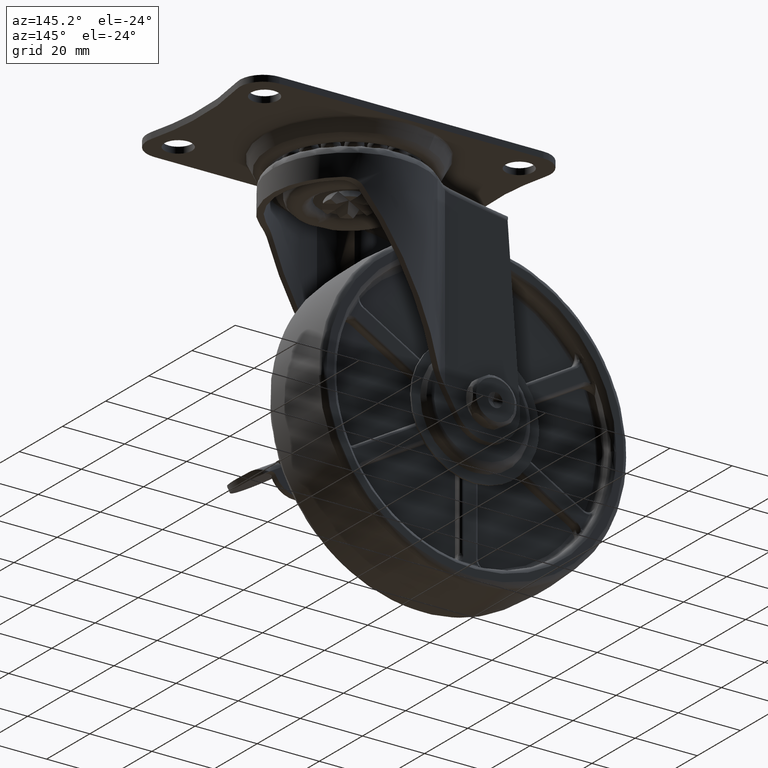
[diagram: clean part render]
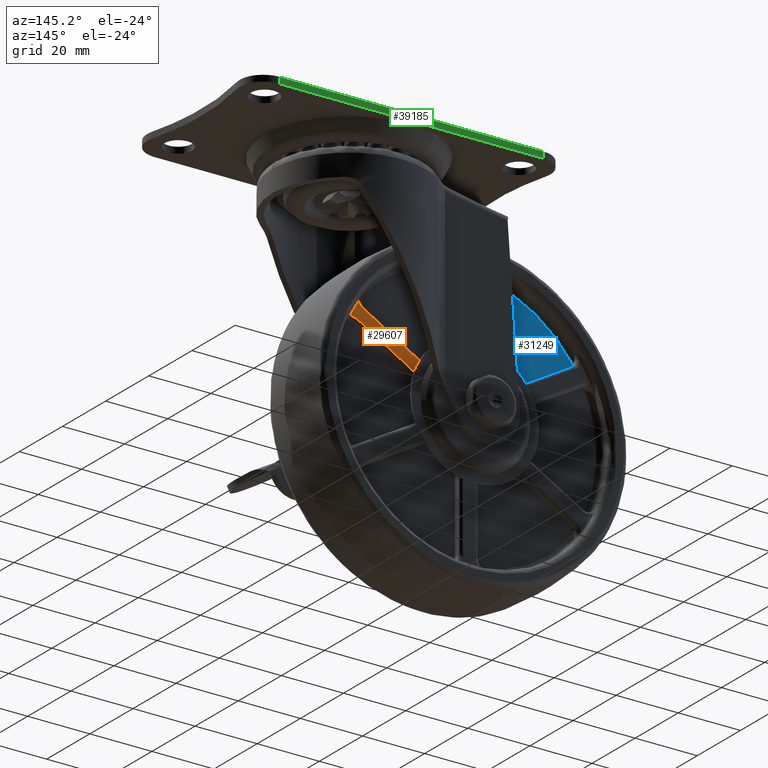
[diagram: same view with three faces highlighted in distinct colors, each labeled with its STEP entity id]
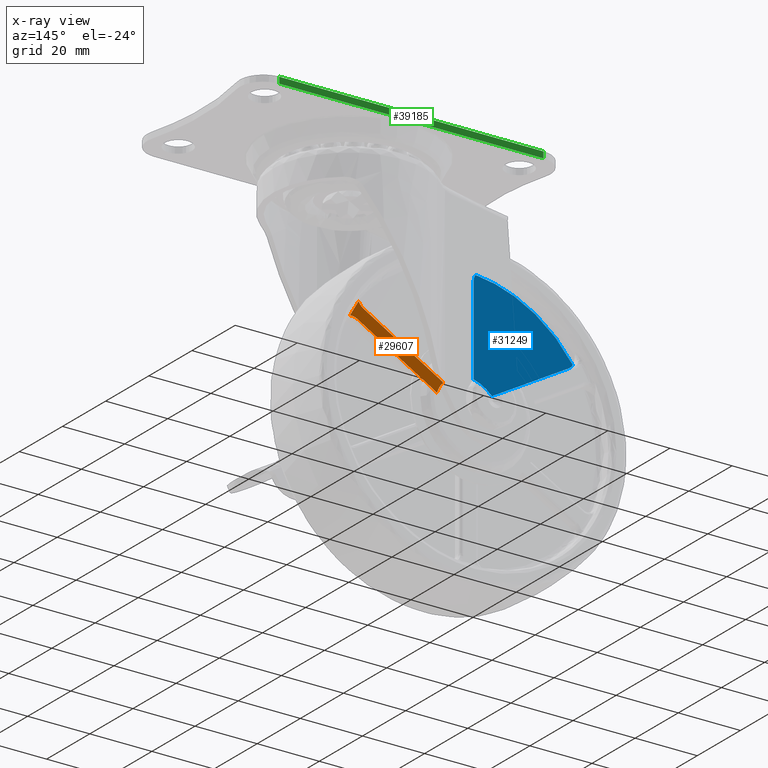
[diagram: x-ray of the same camera — body ghosted, the three highlighted faces saturated]
A machine part, auxiliary view with three faces highlighted in distinct colors.
The next image is the same camera in x-ray (body ghosted, the three faces saturated) — at least one of them is partly hidden behind the body in this view.
Their STEP definitions:

[orange] entity #29607 — the highlighted face is a freeform B-spline surface patch.
#13175=CARTESIAN_POINT('',(3.779601679800585,10.0,-46.150050238316702));
#13176=VERTEX_POINT('',#13175);
#13263=CARTESIAN_POINT('',(6.544463212500560,10.0,-50.938930888845903));
#13264=VERTEX_POINT('',#13263);
#13274=CARTESIAN_POINT('',(3.779601679800585,10.0,-46.150050238316702));
#13275=CARTESIAN_POINT('',(4.802702709859332,9.999999999999993,-47.684815889935983));
#13276=CARTESIAN_POINT('',(5.726855381316554,9.999999999999986,-49.285524670181218));
#13277=CARTESIAN_POINT('',(6.544463212500560,10.0,-50.938930888845903));
#13278=B_SPLINE_CURVE_WITH_KNOTS('',3,(#13274,#13275,#13276,#13277),.UNSPECIFIED.,.F.,.U.,(4,4),(8.749907E-010,5.533555411162674),.UNSPECIFIED.);
#13279=EDGE_CURVE('',#13176,#13264,#13278,.T.);
#15553=CARTESIAN_POINT('',(-21.420945100704550,10.0,-66.236217239079608));
#15554=VERTEX_POINT('',#15553);
#15641=CARTESIAN_POINT('',(-23.450941065069351,10.0,-62.720161089640001));
#15642=VERTEX_POINT('',#15641);
#15653=CARTESIAN_POINT('',(-21.420945100704550,10.0,-66.236217239079608));
#15654=CARTESIAN_POINT('',(-21.876549809029932,10.000000000000020,-64.953839010963307));
#15655=CARTESIAN_POINT('',(-22.568041593440551,10.000000000000020,-63.755838765397783));
#15656=CARTESIAN_POINT('',(-23.450941065069351,10.0,-62.720161089640001));
#15657=B_SPLINE_CURVE_WITH_KNOTS('',3,(#15653,#15654,#15655,#15656),.UNSPECIFIED.,.F.,.U.,(4,4),(0.000000013436559,4.082461791355663),.UNSPECIFIED.);
#15658=EDGE_CURVE('',#15554,#15642,#15657,.T.);
#24973=CARTESIAN_POINT('',(2.124777591935125,10.0,-47.988648783682400));
#24974=VERTEX_POINT('',#24973);
#24975=CARTESIAN_POINT('',(2.124777591935125,10.0,-47.988648783682400));
#24976=CARTESIAN_POINT('',(2.510645462023545,10.000000000000011,-47.766245185645033));
#24977=CARTESIAN_POINT('',(3.165441904364022,9.999999999999981,-47.224307327010152));
#24978=CARTESIAN_POINT('',(3.620072484260611,10.0,-46.509191226654323));
#24979=CARTESIAN_POINT('',(3.779601679800585,10.0,-46.150050238316702));
#24980=B_SPLINE_CURVE_WITH_KNOTS('',3,(#24975,#24976,#24977,#24978,#24979),.UNSPECIFIED.,.F.,.U.,(4,1,4),(0.000000073772816,1.336005434185263,2.514894473802157),.UNSPECIFIED.);
#24981=EDGE_CURVE('',#24974,#13176,#24980,.T.);
#25010=CARTESIAN_POINT('',(-23.012508685252499,10.0,-62.501667621309807));
#25011=VERTEX_POINT('',#25010);
#25030=CARTESIAN_POINT('',(-23.012508685252499,10.0,-62.501667621309807));
#25031=CARTESIAN_POINT('',(2.124777591935125,10.0,-47.988648783682400));
#25032=QUASI_UNIFORM_CURVE('',1,(#25030,#25031),.UNSPECIFIED.,.F.,.U.);
#25033=EDGE_CURVE('',#25011,#24974,#25032,.T.);
#25055=CARTESIAN_POINT('',(-23.450941065069351,10.0,-62.720161089640001));
#25056=CARTESIAN_POINT('',(-23.300537261227369,10.0,-62.656388236771342));
#25057=CARTESIAN_POINT('',(-23.153978204622501,10.0,-62.583350694097057));
#25058=CARTESIAN_POINT('',(-23.012508685252499,10.0,-62.501667621309807));
#25059=B_SPLINE_CURVE_WITH_KNOTS('',3,(#25055,#25056,#25057,#25058),.UNSPECIFIED.,.F.,.U.,(4,4),(4.494666E-009,0.490185306878135),.UNSPECIFIED.);
#25060=EDGE_CURVE('',#15642,#25011,#25059,.T.);
#25090=CARTESIAN_POINT('',(-21.012508016661151,10.0,-65.965770394481709));
#25091=VERTEX_POINT('',#25090);
#25101=CARTESIAN_POINT('',(4.124777983338816,10.0,-51.452751394481602));
#25102=VERTEX_POINT('',#25101);
#25103=CARTESIAN_POINT('',(4.124777983338816,10.0,-51.452751394481602));
#25104=CARTESIAN_POINT('',(-21.012508016661151,10.0,-65.965770394481709));
#25105=QUASI_UNIFORM_CURVE('',1,(#25103,#25104),.UNSPECIFIED.,.F.,.U.);
#25106=EDGE_CURVE('',#25102,#25091,#25105,.T.);
#25145=CARTESIAN_POINT('',(6.544463212500560,10.0,-50.938930888845903));
#25146=CARTESIAN_POINT('',(6.153677702511574,10.0,-50.897534801823582));
#25147=CARTESIAN_POINT('',(5.307032232209445,9.999999999999982,-50.933607687736277));
#25148=CARTESIAN_POINT('',(4.510337697240670,10.000000000000030,-51.229840655803862));
#25149=CARTESIAN_POINT('',(4.124777983338816,10.0,-51.452751394481602));
#25150=B_SPLINE_CURVE_WITH_KNOTS('',3,(#25145,#25146,#25147,#25148,#25149),.UNSPECIFIED.,.F.,.U.,(4,1,4),(0.000000073772609,1.178889187867252,2.514894632674950),.UNSPECIFIED.);
#25151=EDGE_CURVE('',#13264,#25102,#25150,.T.);
#25195=CARTESIAN_POINT('',(-21.012508016661151,10.0,-65.965770394481709));
#25196=CARTESIAN_POINT('',(-21.153988688498728,9.999999999999991,-66.047449648087124));
#25197=CARTESIAN_POINT('',(-21.290520974012122,10.000000000000011,-66.137854154198990));
#25198=CARTESIAN_POINT('',(-21.420945100704550,10.0,-66.236217239079608));
#25199=B_SPLINE_CURVE_WITH_KNOTS('',3,(#25195,#25196,#25197,#25198),.UNSPECIFIED.,.F.,.U.,(4,4),(4.494778E-009,0.490185306878158),.UNSPECIFIED.);
#25200=EDGE_CURVE('',#25091,#15554,#25199,.T.);
#29592=CARTESIAN_POINT('',(-24.949211450597058,10.0,-67.239517587538202));
#29593=CARTESIAN_POINT('',(8.042734402567703,10.0,-67.239517587538202));
#29594=CARTESIAN_POINT('',(-24.949211450597058,10.0,-45.146747375677521));
#29595=CARTESIAN_POINT('',(8.042734402567703,10.0,-45.146747375677521));
#29596=B_SPLINE_SURFACE_WITH_KNOTS('',1,1,((#29592,#29594),(#29593,#29595)),.UNSPECIFIED.,.F.,.F.,.U.,(2,2),(2,2),(0.0,32.991945853164758),(0.0,22.092770211860682),.UNSPECIFIED.);
#29597=ORIENTED_EDGE('',*,*,#24981,.T.);
#29598=ORIENTED_EDGE('',*,*,#13279,.T.);
#29599=ORIENTED_EDGE('',*,*,#25151,.T.);
#29600=ORIENTED_EDGE('',*,*,#25106,.T.);
#29601=ORIENTED_EDGE('',*,*,#25200,.T.);
#29602=ORIENTED_EDGE('',*,*,#15658,.T.);
#29603=ORIENTED_EDGE('',*,*,#25060,.T.);
#29604=ORIENTED_EDGE('',*,*,#25033,.T.);
#29605=EDGE_LOOP('',(#29597,#29598,#29599,#29600,#29601,#29602,#29603,#29604));
#29606=FACE_OUTER_BOUND('',#29605,.T.);
#29607=ADVANCED_FACE('',(#29606),#29596,.F.);

[blue] entity #31249 — the highlighted face is a freeform B-spline surface patch.
#29690=CARTESIAN_POINT('',(-35.592036036793097,7.500000000000000,-27.652068797751301));
#29691=VERTEX_POINT('',#29690);
#29726=CARTESIAN_POINT('',(-35.000000528984963,7.500000000000000,-29.441400133637948));
#29727=VERTEX_POINT('',#29726);
#29733=CARTESIAN_POINT('',(-35.592036036793097,7.500000000000000,-27.652068797751301));
#29734=CARTESIAN_POINT('',(-35.353340790336553,7.500000000000004,-27.972432271427980));
#29735=CARTESIAN_POINT('',(-35.076936403752917,7.500000000000001,-28.562678514731520));
#29736=CARTESIAN_POINT('',(-34.999958054246036,7.500000000000007,-29.201748100233750));
#29737=CARTESIAN_POINT('',(-35.000000528984963,7.500000000000000,-29.441400133637948));
#29738=B_SPLINE_CURVE_WITH_KNOTS('',3,(#29733,#29734,#29735,#29736,#29737),.UNSPECIFIED.,.F.,.U.,(4,1,4),(0.000000075556192,1.198250149626194,1.917221489820000),.UNSPECIFIED.);
#29739=EDGE_CURVE('',#29691,#29727,#29738,.T.);
#29789=CARTESIAN_POINT('',(-35.000000666473753,7.500000000000000,-58.027162575756300));
#29790=VERTEX_POINT('',#29789);
#29798=CARTESIAN_POINT('',(-35.000000666473753,7.500000000000000,-58.027162575756300));
#29799=CARTESIAN_POINT('',(-35.000000528984963,7.500000000000000,-29.441400133637948));
#29800=QUASI_UNIFORM_CURVE('',1,(#29798,#29799),.UNSPECIFIED.,.F.,.U.);
#29801=EDGE_CURVE('',#29790,#29727,#29800,.T.);
#29898=CARTESIAN_POINT('',(-65.624777458519105,7.500000000000000,-47.122623456925602));
#29899=VERTEX_POINT('',#29898);
#29906=CARTESIAN_POINT('',(-66.878366200466402,7.500000000000000,-45.715239939703608));
#29907=VERTEX_POINT('',#29906);
#29942=CARTESIAN_POINT('',(-65.624777458519105,7.500000000000000,-47.122623456925602));
#29943=CARTESIAN_POINT('',(-65.971016648469586,7.499999999999969,-46.923310228360002));
#29944=CARTESIAN_POINT('',(-66.458987974959328,7.500000000000059,-46.491251577682377));
#29945=CARTESIAN_POINT('',(-66.783288242332532,7.499999999999970,-45.935223638200043));
#29946=CARTESIAN_POINT('',(-66.878366200466402,7.500000000000000,-45.715239939703608));
#29947=B_SPLINE_CURVE_WITH_KNOTS('',3,(#29942,#29943,#29944,#29945,#29946),.UNSPECIFIED.,.F.,.U.,(4,1,4),(0.000000075556164,1.198250224095449,1.917221608974868),.UNSPECIFIED.);
#29948=EDGE_CURVE('',#29899,#29907,#29947,.T.);
#30035=CARTESIAN_POINT('',(-40.868781031539150,7.500000000000000,-61.415504499341601));
#30036=VERTEX_POINT('',#30035);
#30037=CARTESIAN_POINT('',(-65.624777458519105,7.500000000000000,-47.122623456925602));
#30038=CARTESIAN_POINT('',(-40.868781031539150,7.500000000000000,-61.415504499341601));
#30039=QUASI_UNIFORM_CURVE('',1,(#30037,#30038),.UNSPECIFIED.,.F.,.U.);
#30040=EDGE_CURVE('',#29899,#30036,#30039,.T.);
#31069=CARTESIAN_POINT('',(-40.868781031539150,7.500000000000000,-61.415504499341601));
#31070=CARTESIAN_POINT('',(-39.924377349525763,7.499999999999989,-60.438559456920267));
#31071=CARTESIAN_POINT('',(-38.058301945116483,7.500000000000020,-59.061090993098347));
#31072=CARTESIAN_POINT('',(-35.901763918827562,7.499999999999993,-58.252987169647042));
#31073=CARTESIAN_POINT('',(-35.000000666473753,7.500000000000000,-58.027162575756300));
#31074=B_SPLINE_CURVE_WITH_KNOTS('',3,(#31069,#31070,#31071,#31072,#31073),.UNSPECIFIED.,.F.,.U.,(4,1,4),(0.000000024469995,4.076024206108846,6.864907150523398),.UNSPECIFIED.);
#31075=EDGE_CURVE('',#30036,#29790,#31074,.T.);
#31225=CARTESIAN_POINT('',(-68.470689007713986,7.500000000000000,-25.965585566843931));
#31226=CARTESIAN_POINT('',(-68.470689007713986,7.500000000000000,-63.101988937723519));
#31227=CARTESIAN_POINT('',(-33.407675441618963,7.500000000000000,-25.965585566843931));
#31228=CARTESIAN_POINT('',(-33.407675441618963,7.500000000000000,-63.101988937723519));
#31229=B_SPLINE_SURFACE_WITH_KNOTS('',1,1,((#31225,#31227),(#31226,#31228)),.UNSPECIFIED.,.F.,.F.,.U.,(2,2),(2,2),(0.0,37.136403370879577),(0.0,35.063013566095023),.UNSPECIFIED.);
#31230=CARTESIAN_POINT('',(-66.878366200466402,7.500000000000000,-45.715239939703608));
#31231=CARTESIAN_POINT('',(-65.601445787196809,7.500000000000001,-43.881039078728087));
#31232=CARTESIAN_POINT('',(-63.128178199631712,7.499999999999997,-40.867034080030074));
#31233=CARTESIAN_POINT('',(-58.198331783830369,7.500000000000021,-36.305939487196930));
#31234=CARTESIAN_POINT('',(-53.407053943523607,7.499999999999954,-33.106437232922467));
#31235=CARTESIAN_POINT('',(-47.962914514592967,7.500000000000003,-30.512341426730519));
#31236=CARTESIAN_POINT('',(-42.529385210424543,7.500000000000042,-28.641712224730110));
#31237=CARTESIAN_POINT('',(-38.109444239793433,7.499999999999952,-27.865351838543880));
#31238=CARTESIAN_POINT('',(-35.592036036793097,7.500000000000000,-27.652068797751301));
#31239=B_SPLINE_CURVE_WITH_KNOTS('',3,(#31230,#31231,#31232,#31233,#31234,#31235,#31236,#31237,#31238),.UNSPECIFIED.,.F.,.U.,(4,1,1,1,1,1,4),(0.000000053118789,6.704719368851187,11.660418715279119,20.114161685966788,23.903831839670602,29.734060428688100,37.313316295665253),.UNSPECIFIED.);
#31240=EDGE_CURVE('',#29907,#29691,#31239,.T.);
#31241=ORIENTED_EDGE('',*,*,#31240,.T.);
#31242=ORIENTED_EDGE('',*,*,#29739,.T.);
#31243=ORIENTED_EDGE('',*,*,#29801,.F.);
#31244=ORIENTED_EDGE('',*,*,#31075,.F.);
#31245=ORIENTED_EDGE('',*,*,#30040,.F.);
#31246=ORIENTED_EDGE('',*,*,#29948,.T.);
#31247=EDGE_LOOP('',(#31241,#31242,#31243,#31244,#31245,#31246));
#31248=FACE_OUTER_BOUND('',#31247,.T.);
#31249=ADVANCED_FACE('',(#31248),#31229,.F.);

[green] entity #39185 — the highlighted face is a freeform B-spline surface patch.
#38824=CARTESIAN_POINT('',(42.500000000000000,29.0,2.0));
#38825=VERTEX_POINT('',#38824);
#38840=CARTESIAN_POINT('',(-42.499997643805600,28.999999999999499,2.0));
#38841=VERTEX_POINT('',#38840);
#38842=CARTESIAN_POINT('',(-42.499997643805600,28.999999999999499,2.0));
#38843=CARTESIAN_POINT('',(42.500000000000000,29.0,2.0));
#38844=QUASI_UNIFORM_CURVE('',1,(#38842,#38843),.UNSPECIFIED.,.F.,.U.);
#38845=EDGE_CURVE('',#38841,#38825,#38844,.T.);
#38922=CARTESIAN_POINT('',(-42.499997643805600,28.999999999999499,0.0));
#38923=VERTEX_POINT('',#38922);
#38938=CARTESIAN_POINT('',(42.500000000000000,29.0,0.0));
#38939=VERTEX_POINT('',#38938);
#38940=CARTESIAN_POINT('',(-42.499997643805600,28.999999999999499,0.0));
#38941=CARTESIAN_POINT('',(42.500000000000000,29.0,0.0));
#38942=QUASI_UNIFORM_CURVE('',1,(#38940,#38941),.UNSPECIFIED.,.F.,.U.);
#38943=EDGE_CURVE('',#38923,#38939,#38942,.T.);
#39162=CARTESIAN_POINT('',(42.500000000000000,29.0,0.0));
#39163=CARTESIAN_POINT('',(42.500000000000000,29.0,2.0));
#39164=QUASI_UNIFORM_CURVE('',1,(#39162,#39163),.UNSPECIFIED.,.F.,.U.);
#39165=EDGE_CURVE('',#38939,#38825,#39164,.T.);
#39170=CARTESIAN_POINT('',(-46.745745765528881,29.0,-0.099899996123612));
#39171=CARTESIAN_POINT('',(46.745751921519279,29.0,-0.099899996123612));
#39172=CARTESIAN_POINT('',(-46.745745765528881,29.0,2.099900049767792));
#39173=CARTESIAN_POINT('',(46.745751921519279,29.0,2.099900049767792));
#39174=B_SPLINE_SURFACE_WITH_KNOTS('',1,1,((#39170,#39172),(#39171,#39173)),.UNSPECIFIED.,.F.,.F.,.U.,(2,2),(2,2),(0.0,93.491497687048167),(0.0,2.199800045891404),.UNSPECIFIED.);
#39175=ORIENTED_EDGE('',*,*,#38845,.T.);
#39176=ORIENTED_EDGE('',*,*,#39165,.F.);
#39177=ORIENTED_EDGE('',*,*,#38943,.F.);
#39178=CARTESIAN_POINT('',(-42.499997643805600,28.999999999999499,0.0));
#39179=CARTESIAN_POINT('',(-42.499997643805600,28.999999999999499,2.0));
#39180=QUASI_UNIFORM_CURVE('',1,(#39178,#39179),.UNSPECIFIED.,.F.,.U.);
#39181=EDGE_CURVE('',#38923,#38841,#39180,.T.);
#39182=ORIENTED_EDGE('',*,*,#39181,.T.);
#39183=EDGE_LOOP('',(#39175,#39176,#39177,#39182));
#39184=FACE_OUTER_BOUND('',#39183,.T.);
#39185=ADVANCED_FACE('',(#39184),#39174,.F.);